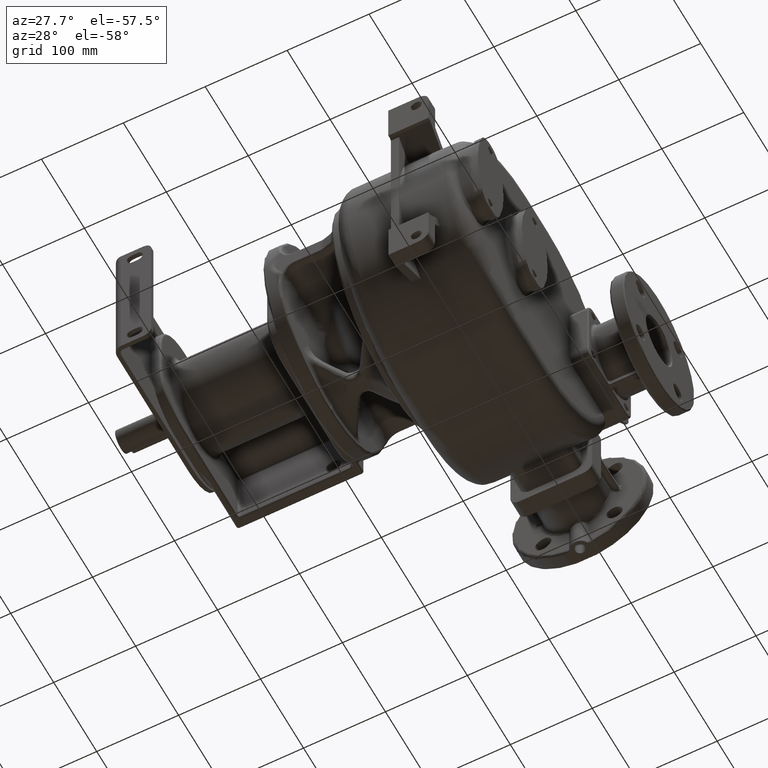
[diagram: clean part render]
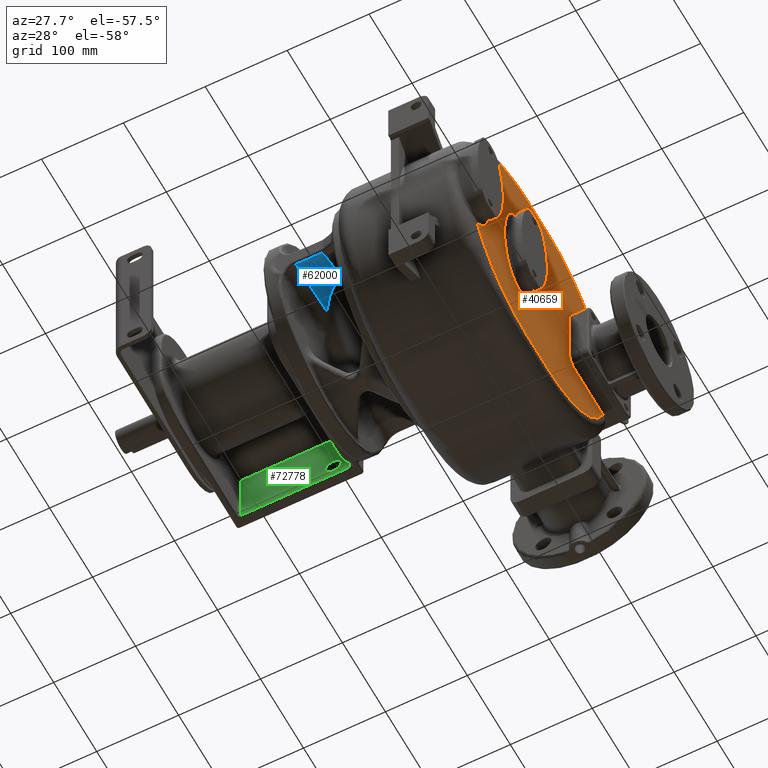
[diagram: same view with three faces highlighted in distinct colors, each labeled with its STEP entity id]
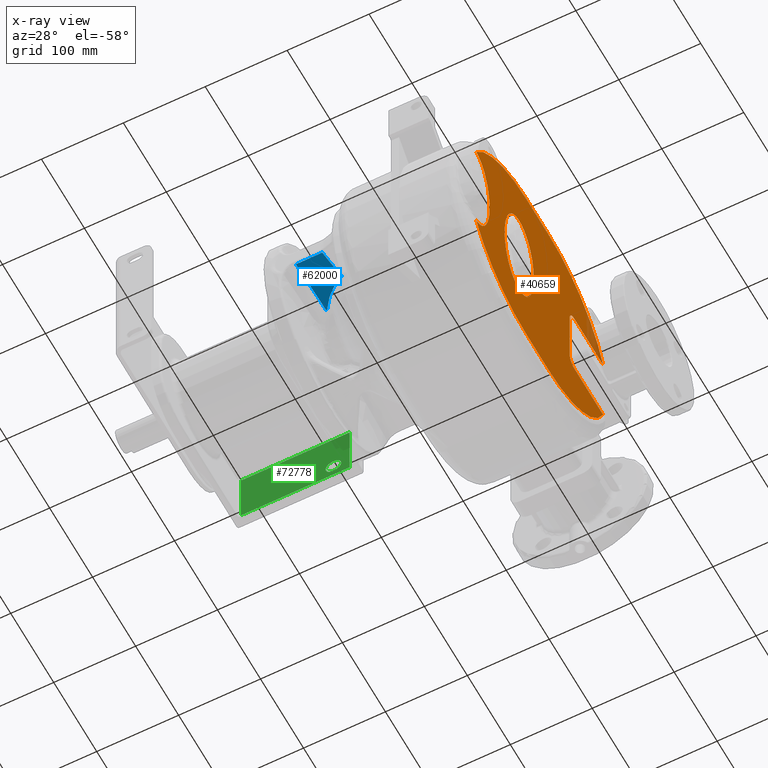
[diagram: x-ray of the same camera — body ghosted, the three highlighted faces saturated]
A machine part, auxiliary view with three faces highlighted in distinct colors.
The next image is the same camera in x-ray (body ghosted, the three faces saturated) — at least one of them is partly hidden behind the body in this view.
Their STEP definitions:

[orange] entity #40659 — the highlighted planar face has unit normal (-1, 0, 0).
#1477=DIRECTION('',(0.E0,1.E0,0.E0));
#1478=VECTOR('',#1477,6.565424301820E1);
#1479=CARTESIAN_POINT('',(5.1E1,2.72E2,-5.95E1));
#1480=LINE('',#1479,#1478);
#1494=CARTESIAN_POINT('',(5.1E1,2.72E2,-4.75E1));
#1495=DIRECTION('',(1.E0,0.E0,0.E0));
#1496=DIRECTION('',(0.E0,-1.E0,1.184237892934E-14));
#1497=AXIS2_PLACEMENT_3D('',#1494,#1495,#1496);
#1503=DIRECTION('',(0.E0,0.E0,-1.E0));
#1504=VECTOR('',#1503,7.6E1);
#1505=CARTESIAN_POINT('',(5.1E1,2.6E2,2.85E1));
#1506=LINE('',#1505,#1504);
#1520=CARTESIAN_POINT('',(5.1E1,2.72E2,2.85E1));
#1521=DIRECTION('',(1.E0,0.E0,0.E0));
#1522=DIRECTION('',(0.E0,0.E0,1.E0));
#1523=AXIS2_PLACEMENT_3D('',#1520,#1521,#1522);
#1555=DIRECTION('',(0.E0,-1.E0,0.E0));
#1556=VECTOR('',#1555,6.565424301820E1);
#1557=CARTESIAN_POINT('',(5.1E1,3.376542430182E2,4.05E1));
#1558=LINE('',#1557,#1556);
#4350=CARTESIAN_POINT('',(5.1E1,4.268468230438E1,-7.829761792100E1));
#4351=CARTESIAN_POINT('',(5.099996561771E1,4.288507179949E1,-7.826740599612E1));
#4352=CARTESIAN_POINT('',(5.100001595688E1,4.328742902132E1,-7.819890789432E1));
#4353=CARTESIAN_POINT('',(5.099999572437E1,4.389653179652E1,-7.807625427332E1));
#4354=CARTESIAN_POINT('',(5.100000114565E1,4.451015052127E1,-7.793029252458E1));
#4355=CARTESIAN_POINT('',(5.099999969302E1,4.512800273074E1,-7.776109483297E1));
#4356=CARTESIAN_POINT('',(5.100000008225E1,4.574971127507E1,-7.756808605748E1));
#4357=CARTESIAN_POINT('',(5.099999997796E1,4.637485257182E1,-7.735086832641E1));
#4358=CARTESIAN_POINT('',(5.100000000591E1,4.700289698337E1,-7.710900963770E1));
#4359=CARTESIAN_POINT('',(5.099999999842E1,4.763334699683E1,-7.684206742626E1));
#4360=CARTESIAN_POINT('',(5.100000000042E1,4.826676153901E1,-7.654904976802E1));
#4361=CARTESIAN_POINT('',(5.099999999989E1,4.890341585481E1,-7.622885375864E1));
#4362=CARTESIAN_POINT('',(5.100000000003E1,4.954380623338E1,-7.588032860335E1));
#4363=CARTESIAN_POINT('',(5.099999999999E1,5.018874412959E1,-7.550200832904E1));
#4364=CARTESIAN_POINT('',(5.1E1,5.083884821383E1,-7.509232479841E1));
#4365=CARTESIAN_POINT('',(5.1E1,5.149439665396E1,-7.464973808498E1));
#4366=CARTESIAN_POINT('',(5.1E1,5.215506656970E1,-7.417300120280E1));
#4367=CARTESIAN_POINT('',(5.1E1,5.282057344521E1,-7.366073118933E1));
#4368=CARTESIAN_POINT('',(5.1E1,5.349118766629E1,-7.311100072795E1));
#4369=CARTESIAN_POINT('',(5.1E1,5.416695237795E1,-7.252194633949E1));
#4370=CARTESIAN_POINT('',(5.1E1,5.484820059100E1,-7.189138038999E1));
#4371=CARTESIAN_POINT('',(5.1E1,5.553511743964E1,-7.121689049875E1));
#4372=CARTESIAN_POINT('',(5.1E1,5.622762763603E1,-7.049599298151E1));
#4373=CARTESIAN_POINT('',(5.1E1,5.692565037110E1,-6.972620942903E1));
#4374=CARTESIAN_POINT('',(5.1E1,5.762911597369E1,-6.890478823583E1));
#4375=CARTESIAN_POINT('',(5.1E1,5.833760198895E1,-6.802886547776E1));
#4376=CARTESIAN_POINT('',(5.1E1,5.905078452352E1,-6.709557468899E1));
#4377=CARTESIAN_POINT('',(5.1E1,5.976826484898E1,-6.610173600559E1));
#4378=CARTESIAN_POINT('',(5.1E1,6.048927555365E1,-6.504413150019E1));
#4379=CARTESIAN_POINT('',(5.1E1,6.121316906244E1,-6.391960173982E1));
#4380=CARTESIAN_POINT('',(5.1E1,6.193889707117E1,-6.272473133623E1));
#4381=CARTESIAN_POINT('',(5.1E1,6.266534555412E1,-6.145632961044E1));
#4382=CARTESIAN_POINT('',(5.1E1,6.339114370431E1,-6.011112285671E1));
#4383=CARTESIAN_POINT('',(5.1E1,6.411470481896E1,-5.868601935351E1));
#4384=CARTESIAN_POINT('',(5.1E1,6.483421764752E1,-5.717807369418E1));
#4385=CARTESIAN_POINT('',(5.1E1,6.554764252815E1,-5.558459897810E1));
#4386=CARTESIAN_POINT('',(5.1E1,6.625267766251E1,-5.390315458386E1));
#4387=CARTESIAN_POINT('',(5.1E1,6.694684456093E1,-5.213178475273E1));
#4388=CARTESIAN_POINT('',(5.1E1,6.762737744976E1,-5.026876582079E1));
#4389=CARTESIAN_POINT('',(5.1E1,6.829138029397E1,-4.831318841168E1));
#4390=CARTESIAN_POINT('',(5.1E1,6.893568225212E1,-4.626437093269E1));
#4391=CARTESIAN_POINT('',(5.1E1,6.955703533691E1,-4.412272100989E1));
#4392=CARTESIAN_POINT('',(5.1E1,7.015197659104E1,-4.188891570806E1));
#4393=CARTESIAN_POINT('',(5.1E1,7.071701258749E1,-3.956499331776E1));
#4394=CARTESIAN_POINT('',(5.1E1,7.124852323063E1,-3.715333472581E1));
#4395=CARTESIAN_POINT('',(5.1E1,7.174295120871E1,-3.465789644974E1));
#4396=CARTESIAN_POINT('',(5.1E1,7.219671521296E1,-3.208297416800E1));
#4397=CARTESIAN_POINT('',(5.1E1,7.260644838124E1,-2.943460258677E1));
#4398=CARTESIAN_POINT('',(5.1E1,7.296884938983E1,-2.671900695181E1));
#4399=CARTESIAN_POINT('',(5.1E1,7.328103407963E1,-2.394428808925E1));
#4400=CARTESIAN_POINT('',(5.1E1,7.354023556065E1,-2.111846639106E1));
#4401=CARTESIAN_POINT('',(5.1E1,7.374434634312E1,-1.825124108219E1));
#4402=CARTESIAN_POINT('',(5.1E1,7.389140494774E1,-1.535219718479E1));
#4403=CARTESIAN_POINT('',(5.1E1,7.398020840343E1,-1.243180397531E1));
#4404=CARTESIAN_POINT('',(5.1E1,7.400992863331E1,-9.500762035922E0));
#4405=CARTESIAN_POINT('',(5.1E1,7.398021035708E1,-6.569793554659E0));
#4406=CARTESIAN_POINT('',(5.1E1,7.389151997745E1,-3.649689023067E0));
#4407=CARTESIAN_POINT('',(5.1E1,7.374446222223E1,-7.512879259407E-1));
#4408=CARTESIAN_POINT('',(5.1E1,7.354050936742E1,2.115372944137E0));
#4409=CARTESIAN_POINT('',(5.1E1,7.328143634435E1,4.940248282945E0));
#4410=CARTESIAN_POINT('',(5.1E1,7.296944496160E1,7.714094990068E0));
#4411=CARTESIAN_POINT('',(5.1E1,7.260728526747E1,1.042883596926E1));
#4412=CARTESIAN_POINT('',(5.1E1,7.219779102521E1,1.307638460795E1));
#4413=CARTESIAN_POINT('',(5.1E1,7.174428822225E1,1.565077391175E1));
#4414=CARTESIAN_POINT('',(5.1E1,7.125008952268E1,1.814582140276E1));
#4415=CARTESIAN_POINT('',(5.1E1,7.071878075665E1,2.055735893335E1));
#4416=CARTESIAN_POINT('',(5.1E1,7.015391282136E1,2.288131600846E1));
#4417=CARTESIAN_POINT('',(5.1E1,6.955910016100E1,2.511528923680E1));
#4418=CARTESIAN_POINT('',(5.1E1,6.893785485243E1,2.725718990492E1));
#4419=CARTESIAN_POINT('',(5.1E1,6.829363527154E1,2.930628697859E1));
#4420=CARTESIAN_POINT('',(5.1E1,6.762970895359E1,3.126214921497E1));
#4421=CARTESIAN_POINT('',(5.1E1,6.694924118206E1,3.312545633423E1));
#4422=CARTESIAN_POINT('',(5.1E1,6.625512790030E1,3.489710363505E1));
#4423=CARTESIAN_POINT('',(5.1E1,6.555014008915E1,3.657884672933E1));
#4424=CARTESIAN_POINT('',(5.1E1,6.483673896275E1,3.817260733681E1));
#4425=CARTESIAN_POINT('',(5.1E1,6.411724588901E1,3.968087256941E1));
#4426=CARTESIAN_POINT('',(5.1E1,6.339367317349E1,4.110627625656E1));
#4427=CARTESIAN_POINT('',(5.1E1,6.266786463320E1,4.245181546342E1));
#4428=CARTESIAN_POINT('',(5.1E1,6.194137155041E1,4.372052191547E1));
#4429=CARTESIAN_POINT('',(5.1E1,6.121561074060E1,4.491570864696E1));
#4430=CARTESIAN_POINT('',(5.1E1,6.049166052959E1,4.604052928592E1));
#4431=CARTESIAN_POINT('',(5.1E1,5.977059833355E1,4.709840387831E1));
#4432=CARTESIAN_POINT('',(5.1E1,5.905306843223E1,4.809251771553E1));
#4433=CARTESIAN_POINT('',(5.1E1,5.833981403696E1,4.902603726072E1));
#4434=CARTESIAN_POINT('',(5.1E1,5.763129418459E1,4.990217294349E1));
#4435=CARTESIAN_POINT('',(5.1E1,5.692777948318E1,5.072380732267E1));
#4436=CARTESIAN_POINT('',(5.1E1,5.622968695062E1,5.149377503879E1));
#4437=CARTESIAN_POINT('',(5.1E1,5.553710960923E1,5.221487826260E1));
#4438=CARTESIAN_POINT('',(5.1E1,5.485008438574E1,5.288959811338E1));
#4439=CARTESIAN_POINT('',(5.1E1,5.416873249231E1,5.352033814771E1));
#4440=CARTESIAN_POINT('',(5.1E1,5.349292770487E1,5.410951724765E1));
#4441=CARTESIAN_POINT('',(5.1E1,5.282234393438E1,5.465932089543E1));
#4442=CARTESIAN_POINT('',(5.1E1,5.215689483611E1,5.517164514390E1));
#4443=CARTESIAN_POINT('',(5.1E1,5.149626269215E1,5.564843901822E1));
#4444=CARTESIAN_POINT('',(5.1E1,5.084066802205E1,5.609113498735E1));
#4445=CARTESIAN_POINT('',(5.099999999999E1,5.019050885427E1,5.650092956910E1));
#4446=CARTESIAN_POINT('',(5.100000000003E1,4.954558002087E1,5.687932374159E1));
#4447=CARTESIAN_POINT('',(5.099999999988E1,4.890525530406E1,5.722789592884E1));
#4448=CARTESIAN_POINT('',(5.100000000044E1,4.826872704455E1,5.754812214396E1));
#4449=CARTESIAN_POINT('',(5.099999999836E1,4.763539962473E1,5.784117482806E1));
#4450=CARTESIAN_POINT('',(5.100000000611E1,4.700496128333E1,5.810816505988E1));
#4451=CARTESIAN_POINT('',(5.099999997719E1,4.637679908441E1,5.835011981441E1));
#4452=CARTESIAN_POINT('',(5.100000008514E1,4.575138389332E1,5.856748598768E1));
#4453=CARTESIAN_POINT('',(5.099999968224E1,4.512931824123E1,5.876066600221E1));
#4454=CARTESIAN_POINT('',(5.100000118588E1,4.451107245717E1,5.893004500376E1));
#4455=CARTESIAN_POINT('',(5.099999557422E1,4.389708749132E1,5.907617708156E1));
#4456=CARTESIAN_POINT('',(5.100001651725E1,4.328765997884E1,5.919899423685E1));
#4457=CARTESIAN_POINT('',(5.099996441028E1,4.288513209263E1,5.926739849668E1));
#4458=CARTESIAN_POINT('',(5.1E1,4.268468074864E1,5.929761836222E1));
#4460=CARTESIAN_POINT('',(5.1E1,1.6E2,-9.5E0));
#4461=DIRECTION('',(1.E0,0.E0,0.E0));
#4462=DIRECTION('',(0.E0,0.E0,1.E0));
#4463=AXIS2_PLACEMENT_3D('',#4460,#4461,#4462);
#4465=DIRECTION('',(0.E0,-1.E0,0.E0));
#4466=VECTOR('',#4465,5.117894898810E1);
#4467=CARTESIAN_POINT('',(5.1E1,2.111789489881E2,1.265E2));
#4468=LINE('',#4467,#4466);
#4469=CARTESIAN_POINT('',(5.1E1,2.111789489881E2,-9.5E0));
#4470=DIRECTION('',(1.E0,0.E0,0.E0));
#4471=DIRECTION('',(0.E0,9.299653972801E-1,3.676470588235E-1));
#4472=AXIS2_PLACEMENT_3D('',#4469,#4470,#4471);
#4474=CARTESIAN_POINT('',(5.1E1,2.111789489881E2,-9.5E0));
#4475=DIRECTION('',(1.E0,0.E0,0.E0));
#4476=DIRECTION('',(0.E0,0.E0,-1.E0));
#4477=AXIS2_PLACEMENT_3D('',#4474,#4475,#4476);
#4479=DIRECTION('',(0.E0,1.E0,0.E0));
#4480=VECTOR('',#4479,5.117894898810E1);
#4481=CARTESIAN_POINT('',(5.1E1,1.6E2,-1.455E2));
#4482=LINE('',#4481,#4480);
#4483=CARTESIAN_POINT('',(5.1E1,1.6E2,-9.5E0));
#4484=DIRECTION('',(1.E0,0.E0,0.E0));
#4485=DIRECTION('',(0.E0,-8.626127234458E-1,-5.058648923868E-1));
#4486=AXIS2_PLACEMENT_3D('',#4483,#4484,#4485);
#4488=CARTESIAN_POINT('',(5.100003607404E1,1.425000000248E2,5.949999999900E1));
#4489=CARTESIAN_POINT('',(5.100007695994E1,1.422945999860E2,5.949991869386E1));
#4490=CARTESIAN_POINT('',(5.099996428277E1,1.418837711637E2,5.949238214688E1));
#4491=CARTESIAN_POINT('',(5.100000957040E1,1.412675380692E2,5.946022529515E1));
#4492=CARTESIAN_POINT('',(5.099999743562E1,1.406510244680E2,5.940679982663E1));
#4493=CARTESIAN_POINT('',(5.100000068712E1,1.400340643095E2,5.933215876645E1));
#4494=CARTESIAN_POINT('',(5.099999981589E1,1.394165017566E2,5.923603954965E1));
#4495=CARTESIAN_POINT('',(5.100000004933E1,1.387982238144E2,5.911809729550E1));
#4496=CARTESIAN_POINT('',(5.099999998678E1,1.381792348535E2,5.897775819680E1));
#4497=CARTESIAN_POINT('',(5.100000000354E1,1.375593205335E2,5.881472030319E1));
#4498=CARTESIAN_POINT('',(5.099999999905E1,1.369372400594E2,5.862845164102E1));
#4499=CARTESIAN_POINT('',(5.100000000025E1,1.363119820411E2,5.841818751397E1));
#4500=CARTESIAN_POINT('',(5.099999999993E1,1.356824819503E2,5.818290845154E1));
#4501=CARTESIAN_POINT('',(5.100000000002E1,1.350489230754E2,5.792185380042E1));
#4502=CARTESIAN_POINT('',(5.1E1,1.344119946498E2,5.763441051009E1));
#4503=CARTESIAN_POINT('',(5.1E1,1.337726444242E2,5.732006076733E1));
#4504=CARTESIAN_POINT('',(5.1E1,1.331303549075E2,5.697779423724E1));
#4505=CARTESIAN_POINT('',(5.1E1,1.324835900825E2,5.660583851482E1));
#4506=CARTESIAN_POINT('',(5.1E1,1.318311859473E2,5.620229668672E1));
#4507=CARTESIAN_POINT('',(5.1E1,1.311732286872E2,5.576581988051E1));
#4508=CARTESIAN_POINT('',(5.1E1,1.305103404312E2,5.529536680020E1));
#4509=CARTESIAN_POINT('',(5.1E1,1.298427382671E2,5.478953744139E1));
#4510=CARTESIAN_POINT('',(5.1E1,1.291697147922E2,5.424608590368E1));
#4511=CARTESIAN_POINT('',(5.1E1,1.284909359667E2,5.366285240601E1));
#4512=CARTESIAN_POINT('',(5.1E1,1.278062722040E2,5.303775360821E1));
#4513=CARTESIAN_POINT('',(5.1E1,1.271157186552E2,5.236850826974E1));
#4514=CARTESIAN_POINT('',(5.1E1,1.264191972144E2,5.165244395457E1));
#4515=CARTESIAN_POINT('',(5.1E1,1.257168525221E2,5.088708357241E1));
#4516=CARTESIAN_POINT('',(5.1E1,1.250089568863E2,5.006986852159E1));
#4517=CARTESIAN_POINT('',(5.1E1,1.242957142527E2,4.919764314533E1));
#4518=CARTESIAN_POINT('',(5.1E1,1.235775224291E2,4.826756429417E1));
#4519=CARTESIAN_POINT('',(5.1E1,1.228549234872E2,4.727659576194E1));
#4520=CARTESIAN_POINT('',(5.1E1,1.221285474659E2,4.622128304718E1));
#4521=CARTESIAN_POINT('',(5.1E1,1.213991371343E2,4.509854369749E1));
#4522=CARTESIAN_POINT('',(5.1E1,1.206677674329E2,4.390494095506E1));
#4523=CARTESIAN_POINT('',(5.1E1,1.199355733907E2,4.263727427826E1));
#4524=CARTESIAN_POINT('',(5.1E1,1.192039697873E2,4.129227625580E1));
#4525=CARTESIAN_POINT('',(5.1E1,1.184744894627E2,3.986670584021E1));
#4526=CARTESIAN_POINT('',(5.1E1,1.177489680175E2,3.835755962095E1));
#4527=CARTESIAN_POINT('',(5.1E1,1.170294180954E2,3.676200982608E1));
#4528=CARTESIAN_POINT('',(5.1E1,1.163181822120E2,3.507756380943E1));
#4529=CARTESIAN_POINT('',(5.1E1,1.156176932954E2,3.330202105268E1));
#4530=CARTESIAN_POINT('',(5.1E1,1.149308227632E2,3.143374570208E1));
#4531=CARTESIAN_POINT('',(5.1E1,1.142604405156E2,2.947155447930E1));
#4532=CARTESIAN_POINT('',(5.1E1,1.136098340179E2,2.741493039363E1));
#4533=CARTESIAN_POINT('',(5.1E1,1.129822596106E2,2.526400604078E1));
#4534=CARTESIAN_POINT('',(5.1E1,1.123812903285E2,2.301969527692E1));
#4535=CARTESIAN_POINT('',(5.1E1,1.118104728852E2,2.068382489743E1));
#4536=CARTESIAN_POINT('',(5.1E1,1.112735120291E2,1.825905168608E1));
#4537=CARTESIAN_POINT('',(5.1E1,1.107740447979E2,1.574916272576E1));
#4538=CARTESIAN_POINT('',(5.1E1,1.103157078540E2,1.315875961342E1));
#4539=CARTESIAN_POINT('',(5.1E1,1.099019530578E2,1.049367489146E1));
#4540=CARTESIAN_POINT('',(5.1E1,1.095361277721E2,7.760579166331E0));
#4541=CARTESIAN_POINT('',(5.1E1,1.092211808004E2,4.967212561138E0));
#4542=CARTESIAN_POINT('',(5.1E1,1.089599364244E2,2.122267163949E0));
#4543=CARTESIAN_POINT('',(5.1E1,1.087545231923E2,-7.650070357867E-1));
#4544=CARTESIAN_POINT('',(5.1E1,1.086069979656E2,-3.684276714327E0));
#4545=CARTESIAN_POINT('',(5.1E1,1.085184897661E2,-6.625214621036E0));
#4546=CARTESIAN_POINT('',(5.1E1,1.084899735288E2,-9.576753695830E0));
#4547=CARTESIAN_POINT('',(5.1E1,1.085216498444E2,-1.252782067768E1));
#4548=CARTESIAN_POINT('',(5.1E1,1.086131402192E2,-1.546745092398E1));
#4549=CARTESIAN_POINT('',(5.1E1,1.087637734004E2,-1.838472553924E1));
#4550=CARTESIAN_POINT('',(5.1E1,1.089719293173E2,-2.126897740858E1));
#4551=CARTESIAN_POINT('',(5.1E1,1.092359446727E2,-2.411052577182E1));
#4552=CARTESIAN_POINT('',(5.1E1,1.095533383882E2,-2.689956379346E1));
#4553=CARTESIAN_POINT('',(5.1E1,1.099214405269E2,-2.962799373773E1));
#4554=CARTESIAN_POINT('',(5.1E1,1.103372520632E2,-3.228790944859E1));
#4555=CARTESIAN_POINT('',(5.1E1,1.107973389368E2,-3.487277405746E1));
#4556=CARTESIAN_POINT('',(5.1E1,1.112983890852E2,-3.737694671690E1));
#4557=CARTESIAN_POINT('',(5.1E1,1.118365868703E2,-3.979569594856E1));
#4558=CARTESIAN_POINT('',(5.1E1,1.124084673064E2,-4.212549920756E1));
#4559=CARTESIAN_POINT('',(5.1E1,1.130101804922E2,-4.436358945667E1));
#4560=CARTESIAN_POINT('',(5.1E1,1.136382952599E2,-4.650830174892E1));
#4561=CARTESIAN_POINT('',(5.1E1,1.142891844516E2,-4.855873036060E1));
#4562=CARTESIAN_POINT('',(5.1E1,1.149596114773E2,-5.051476255298E1));
#4563=CARTESIAN_POINT('',(5.1E1,1.156463483562E2,-5.237704205210E1));
#4564=CARTESIAN_POINT('',(5.1E1,1.163464630557E2,-5.414670701812E1));
#4565=CARTESIAN_POINT('',(5.1E1,1.170572255337E2,-5.582555299853E1));
#4566=CARTESIAN_POINT('',(5.1E1,1.177760896220E2,-5.741569755446E1));
#4567=CARTESIAN_POINT('',(5.1E1,1.185008388262E2,-5.891968185008E1));
#4568=CARTESIAN_POINT('',(5.1E1,1.192293541828E2,-6.034030852213E1));
#4569=CARTESIAN_POINT('',(5.1E1,1.199599221719E2,-6.168058467168E1));
#4570=CARTESIAN_POINT('',(5.1E1,1.206908800770E2,-6.294373717395E1));
#4571=CARTESIAN_POINT('',(5.1E1,1.214209179693E2,-6.413294659644E1));
#4572=CARTESIAN_POINT('',(5.1E1,1.221488401736E2,-6.525158924637E1));
#4573=CARTESIAN_POINT('',(5.1E1,1.228736502344E2,-6.630296156376E1));
#4574=CARTESIAN_POINT('',(5.1E1,1.235946882183E2,-6.729035966057E1));
#4575=CARTESIAN_POINT('',(5.1E1,1.243112355300E2,-6.821715616336E1));
#4576=CARTESIAN_POINT('',(5.1E1,1.250228771469E2,-6.908634661733E1));
#4577=CARTESIAN_POINT('',(5.1E1,1.257294164673E2,-6.990113093142E1));
#4578=CARTESIAN_POINT('',(5.1E1,1.264304753154E2,-7.066436828689E1));
#4579=CARTESIAN_POINT('',(5.1E1,1.271259289295E2,-7.137865157255E1));
#4580=CARTESIAN_POINT('',(5.1E1,1.278158082142E2,-7.204670326105E1));
#4581=CARTESIAN_POINT('',(5.1E1,1.284999694859E2,-7.267085881927E1));
#4582=CARTESIAN_POINT('',(5.1E1,1.291785243110E2,-7.325336343749E1));
#4583=CARTESIAN_POINT('',(5.1E1,1.298516193506E2,-7.379641585594E1));
#4584=CARTESIAN_POINT('',(5.1E1,1.305192655782E2,-7.430188838955E1));
#4585=CARTESIAN_POINT('',(5.1E1,1.311817226926E2,-7.477165876465E1));
#4586=CARTESIAN_POINT('',(5.1E1,1.318391675191E2,-7.520741828588E1));
#4587=CARTESIAN_POINT('',(5.1E1,1.324917707286E2,-7.561070947403E1));
#4588=CARTESIAN_POINT('',(5.1E1,1.331398704629E2,-7.598301723050E1));
#4589=CARTESIAN_POINT('',(5.1E1,1.337836236252E2,-7.632560894213E1));
#4590=CARTESIAN_POINT('',(5.1E1,1.344233019318E2,-7.663971750110E1));
#4591=CARTESIAN_POINT('',(5.100000000001E1,1.350592519593E2,-7.692644427837E1));
#4592=CARTESIAN_POINT('',(5.099999999997E1,1.356918320403E2,-7.718685013442E1));
#4593=CARTESIAN_POINT('',(5.100000000013E1,1.363214326640E2,-7.742182682782E1));
#4594=CARTESIAN_POINT('',(5.099999999953E1,1.369480966556E2,-7.763206647714E1));
#4595=CARTESIAN_POINT('',(5.100000000175E1,1.375718720997E2,-7.781827214628E1));
#4596=CARTESIAN_POINT('',(5.099999999347E1,1.381932475108E2,-7.798108622766E1));
#4597=CARTESIAN_POINT('',(5.100000002436E1,1.388128885599E2,-7.812117091758E1));
#4598=CARTESIAN_POINT('',(5.099999990907E1,1.394316154250E2,-7.823909313028E1));
#4599=CARTESIAN_POINT('',(5.100000033935E1,1.400492866518E2,-7.833500624514E1));
#4600=CARTESIAN_POINT('',(5.099999873353E1,1.406654032315E2,-7.840914090886E1));
#4601=CARTESIAN_POINT('',(5.100000472654E1,1.412795575183E2,-7.846177944300E1));
#4602=CARTESIAN_POINT('',(5.099998236029E1,1.418914219473E2,-7.849308176597E1));
#4603=CARTESIAN_POINT('',(5.100003800828E1,1.422974360378E2,-7.849999666151E1));
#4604=CARTESIAN_POINT('',(5.100003607404E1,1.424999999752E2,-7.849999999900E1));
#4606=CARTESIAN_POINT('',(5.100003607404E1,1.424999999752E2,-7.849999999900E1));
#4607=CARTESIAN_POINT('',(5.100007695994E1,1.427054000140E2,-7.849991869386E1));
#4608=CARTESIAN_POINT('',(5.099996428277E1,1.431162288363E2,-7.849238214688E1));
#4609=CARTESIAN_POINT('',(5.100000957040E1,1.437324619308E2,-7.846022529515E1));
#4610=CARTESIAN_POINT('',(5.099999743562E1,1.443489755320E2,-7.840679982663E1));
#4611=CARTESIAN_POINT('',(5.100000068712E1,1.449659356905E2,-7.833215876645E1));
#4612=CARTESIAN_POINT('',(5.099999981589E1,1.455834982434E2,-7.823603954965E1));
#4613=CARTESIAN_POINT('',(5.100000004933E1,1.462017761856E2,-7.811809729550E1));
#4614=CARTESIAN_POINT('',(5.099999998678E1,1.468207651465E2,-7.797775819680E1));
#4615=CARTESIAN_POINT('',(5.100000000354E1,1.474406794665E2,-7.781472030319E1));
#4616=CARTESIAN_POINT('',(5.099999999905E1,1.480627599406E2,-7.762845164102E1));
#4617=CARTESIAN_POINT('',(5.100000000025E1,1.486880179589E2,-7.741818751397E1));
#4618=CARTESIAN_POINT('',(5.099999999993E1,1.493175180497E2,-7.718290845154E1));
#4619=CARTESIAN_POINT('',(5.100000000002E1,1.499510769246E2,-7.692185380042E1));
#4620=CARTESIAN_POINT('',(5.1E1,1.505880053502E2,-7.663441051009E1));
#4621=CARTESIAN_POINT('',(5.1E1,1.512273555758E2,-7.632006076733E1));
#4622=CARTESIAN_POINT('',(5.1E1,1.518696450925E2,-7.597779423724E1));
#4623=CARTESIAN_POINT('',(5.1E1,1.525164099175E2,-7.560583851482E1));
#4624=CARTESIAN_POINT('',(5.1E1,1.531688140527E2,-7.520229668672E1));
#4625=CARTESIAN_POINT('',(5.1E1,1.538267713128E2,-7.476581988051E1));
#4626=CARTESIAN_POINT('',(5.1E1,1.544896595688E2,-7.429536680020E1));
#4627=CARTESIAN_POINT('',(5.1E1,1.551572617329E2,-7.378953744139E1));
#4628=CARTESIAN_POINT('',(5.1E1,1.558302852078E2,-7.324608590368E1));
#4629=CARTESIAN_POINT('',(5.1E1,1.565090640333E2,-7.266285240601E1));
#4630=CARTESIAN_POINT('',(5.1E1,1.571937277960E2,-7.203775360821E1));
#4631=CARTESIAN_POINT('',(5.1E1,1.578842813448E2,-7.136850826974E1));
#4632=CARTESIAN_POINT('',(5.1E1,1.585808027856E2,-7.065244395456E1));
#4633=CARTESIAN_POINT('',(5.1E1,1.592831474779E2,-6.988708357241E1));
#4634=CARTESIAN_POINT('',(5.1E1,1.599910431137E2,-6.906986852159E1));
#4635=CARTESIAN_POINT('',(5.1E1,1.607042857473E2,-6.819764314533E1));
#4636=CARTESIAN_POINT('',(5.1E1,1.614224775709E2,-6.726756429417E1));
#4637=CARTESIAN_POINT('',(5.1E1,1.621450765128E2,-6.627659576194E1));
#4638=CARTESIAN_POINT('',(5.1E1,1.628714525341E2,-6.522128304718E1));
#4639=CARTESIAN_POINT('',(5.1E1,1.636008628657E2,-6.409854369749E1));
#4640=CARTESIAN_POINT('',(5.1E1,1.643322325671E2,-6.290494095505E1));
#4641=CARTESIAN_POINT('',(5.1E1,1.650644266093E2,-6.163727427826E1));
#4642=CARTESIAN_POINT('',(5.1E1,1.657960302127E2,-6.029227625580E1));
#4643=CARTESIAN_POINT('',(5.1E1,1.665255105373E2,-5.886670584021E1));
#4644=CARTESIAN_POINT('',(5.1E1,1.672510319825E2,-5.735755962095E1));
#4645=CARTESIAN_POINT('',(5.1E1,1.679705819046E2,-5.576200982608E1));
#4646=CARTESIAN_POINT('',(5.1E1,1.686818177880E2,-5.407756380942E1));
#4647=CARTESIAN_POINT('',(5.1E1,1.693823067046E2,-5.230202105268E1));
#4648=CARTESIAN_POINT('',(5.1E1,1.700691772368E2,-5.043374570208E1));
#4649=CARTESIAN_POINT('',(5.1E1,1.707395594844E2,-4.847155447930E1));
#4650=CARTESIAN_POINT('',(5.1E1,1.713901659821E2,-4.641493039363E1));
#4651=CARTESIAN_POINT('',(5.1E1,1.720177403894E2,-4.426400604078E1));
#4652=CARTESIAN_POINT('',(5.1E1,1.726187096715E2,-4.201969527692E1));
#4653=CARTESIAN_POINT('',(5.1E1,1.731895271148E2,-3.968382489743E1));
#4654=CARTESIAN_POINT('',(5.1E1,1.737264879709E2,-3.725905168608E1));
#4655=CARTESIAN_POINT('',(5.1E1,1.742259552021E2,-3.474916272576E1));
#4656=CARTESIAN_POINT('',(5.1E1,1.746842921460E2,-3.215875961342E1));
#4657=CARTESIAN_POINT('',(5.1E1,1.750980469422E2,-2.949367489146E1));
#4658=CARTESIAN_POINT('',(5.1E1,1.754638722279E2,-2.676057916633E1));
#4659=CARTESIAN_POINT('',(5.1E1,1.757788191996E2,-2.396721256114E1));
#4660=CARTESIAN_POINT('',(5.1E1,1.760400635756E2,-2.112226716395E1));
#4661=CARTESIAN_POINT('',(5.1E1,1.762454768077E2,-1.823499296421E1));
#4662=CARTESIAN_POINT('',(5.1E1,1.763930020344E2,-1.531572328567E1));
#4663=CARTESIAN_POINT('',(5.1E1,1.764815102339E2,-1.237478537896E1));
#4664=CARTESIAN_POINT('',(5.1E1,1.765100264712E2,-9.423246304170E0));
#4665=CARTESIAN_POINT('',(5.1E1,1.764783501556E2,-6.472179322323E0));
#4666=CARTESIAN_POINT('',(5.1E1,1.763868597808E2,-3.532549076025E0));
#4667=CARTESIAN_POINT('',(5.1E1,1.762362265996E2,-6.152744607656E-1));
#4668=CARTESIAN_POINT('',(5.1E1,1.760280706827E2,2.268977408573E0));
#4669=CARTESIAN_POINT('',(5.1E1,1.757640553273E2,5.110525771814E0));
#4670=CARTESIAN_POINT('',(5.1E1,1.754466616118E2,7.899563793457E0));
#4671=CARTESIAN_POINT('',(5.1E1,1.750785594731E2,1.062799373773E1));
#4672=CARTESIAN_POINT('',(5.1E1,1.746627479368E2,1.328790944859E1));
#4673=CARTESIAN_POINT('',(5.1E1,1.742026610632E2,1.587277405746E1));
#4674=CARTESIAN_POINT('',(5.1E1,1.737016109148E2,1.837694671690E1));
#4675=CARTESIAN_POINT('',(5.1E1,1.731634131297E2,2.079569594856E1));
#4676=CARTESIAN_POINT('',(5.1E1,1.725915326936E2,2.312549920755E1));
#4677=CARTESIAN_POINT('',(5.1E1,1.719898195078E2,2.536358945667E1));
#4678=CARTESIAN_POINT('',(5.1E1,1.713617047401E2,2.750830174891E1));
#4679=CARTESIAN_POINT('',(5.1E1,1.707108155484E2,2.955873036060E1));
#4680=CARTESIAN_POINT('',(5.1E1,1.700403885227E2,3.151476255297E1));
#4681=CARTESIAN_POINT('',(5.1E1,1.693536516438E2,3.337704205210E1));
#4682=CARTESIAN_POINT('',(5.1E1,1.686535369443E2,3.514670701812E1));
#4683=CARTESIAN_POINT('',(5.1E1,1.679427744663E2,3.682555299853E1));
#4684=CARTESIAN_POINT('',(5.1E1,1.672239103780E2,3.841569755446E1));
#4685=CARTESIAN_POINT('',(5.1E1,1.664991611738E2,3.991968185008E1));
#4686=CARTESIAN_POINT('',(5.1E1,1.657706458172E2,4.134030852213E1));
#4687=CARTESIAN_POINT('',(5.1E1,1.650400778281E2,4.268058467168E1));
#4688=CARTESIAN_POINT('',(5.1E1,1.643091199230E2,4.394373717395E1));
#4689=CARTESIAN_POINT('',(5.1E1,1.635790820307E2,4.513294659643E1));
#4690=CARTESIAN_POINT('',(5.1E1,1.628511598264E2,4.625158924637E1));
#4691=CARTESIAN_POINT('',(5.1E1,1.621263497656E2,4.730296156376E1));
#4692=CARTESIAN_POINT('',(5.1E1,1.614053117817E2,4.829035966057E1));
#4693=CARTESIAN_POINT('',(5.1E1,1.606887644700E2,4.921715616336E1));
#4694=CARTESIAN_POINT('',(5.1E1,1.599771228531E2,5.008634661733E1));
#4695=CARTESIAN_POINT('',(5.1E1,1.592705835327E2,5.090113093142E1));
#4696=CARTESIAN_POINT('',(5.1E1,1.585695246846E2,5.166436828689E1));
#4697=CARTESIAN_POINT('',(5.1E1,1.578740710705E2,5.237865157255E1));
#4698=CARTESIAN_POINT('',(5.1E1,1.571841917858E2,5.304670326105E1));
#4699=CARTESIAN_POINT('',(5.1E1,1.565000305141E2,5.367085881926E1));
#4700=CARTESIAN_POINT('',(5.1E1,1.558214756890E2,5.425336343749E1));
#4701=CARTESIAN_POINT('',(5.1E1,1.551483806494E2,5.479641585594E1));
#4702=CARTESIAN_POINT('',(5.1E1,1.544807344218E2,5.530188838955E1));
#4703=CARTESIAN_POINT('',(5.1E1,1.538182773074E2,5.577165876465E1));
#4704=CARTESIAN_POINT('',(5.1E1,1.531608324809E2,5.620741828588E1));
#4705=CARTESIAN_POINT('',(5.1E1,1.525082292714E2,5.661070947403E1));
#4706=CARTESIAN_POINT('',(5.1E1,1.518601295371E2,5.698301723050E1));
#4707=CARTESIAN_POINT('',(5.1E1,1.512163763748E2,5.732560894213E1));
#4708=CARTESIAN_POINT('',(5.1E1,1.505766980682E2,5.763971750110E1));
#4709=CARTESIAN_POINT('',(5.100000000001E1,1.499407480407E2,5.792644427837E1));
#4710=CARTESIAN_POINT('',(5.099999999997E1,1.493081679597E2,5.818685013442E1));
#4711=CARTESIAN_POINT('',(5.100000000013E1,1.486785673360E2,5.842182682782E1));
#4712=CARTESIAN_POINT('',(5.099999999953E1,1.480519033444E2,5.863206647714E1));
#4713=CARTESIAN_POINT('',(5.100000000175E1,1.474281279003E2,5.881827214628E1));
#4714=CARTESIAN_POINT('',(5.099999999347E1,1.468067524892E2,5.898108622766E1));
#4715=CARTESIAN_POINT('',(5.100000002436E1,1.461871114401E2,5.912117091758E1));
#4716=CARTESIAN_POINT('',(5.099999990907E1,1.455683845750E2,5.923909313028E1));
#4717=CARTESIAN_POINT('',(5.100000033935E1,1.449507133482E2,5.933500624514E1));
#4718=CARTESIAN_POINT('',(5.099999873353E1,1.443345967685E2,5.940914090886E1));
#4719=CARTESIAN_POINT('',(5.100000472654E1,1.437204424817E2,5.946177944300E1));
#4720=CARTESIAN_POINT('',(5.099998236029E1,1.431085780527E2,5.949308176597E1));
#4721=CARTESIAN_POINT('',(5.100003800828E1,1.427025639622E2,5.949999666151E1));
#4722=CARTESIAN_POINT('',(5.100003607404E1,1.425000000248E2,5.949999999900E1));
#4734=CARTESIAN_POINT('',(5.100017032714E1,4.268467094927E1,5.929762101876E1));
#4865=CARTESIAN_POINT('',(5.100019114263E1,4.268467140928E1,-7.829762089593E1));
#33454=CARTESIAN_POINT('',(5.1E1,2.6E2,2.85E1));
#33455=CARTESIAN_POINT('',(5.1E1,2.6E2,-4.75E1));
#33456=VERTEX_POINT('',#33454);
#33457=VERTEX_POINT('',#33455);
#33462=CARTESIAN_POINT('',(5.1E1,2.111789489881E2,-1.455E2));
#33463=CARTESIAN_POINT('',(5.1E1,3.376542430182E2,-5.95E1));
#33464=VERTEX_POINT('',#33462);
#33465=VERTEX_POINT('',#33463);
#33466=CARTESIAN_POINT('',(5.1E1,1.6E2,-1.455E2));
#33467=VERTEX_POINT('',#33466);
#33472=CARTESIAN_POINT('',(5.1E1,2.111789489881E2,1.265E2));
#33473=CARTESIAN_POINT('',(5.1E1,1.6E2,1.265E2));
#33474=VERTEX_POINT('',#33472);
#33475=VERTEX_POINT('',#33473);
#33478=CARTESIAN_POINT('',(5.1E1,3.376542430182E2,4.05E1));
#33479=VERTEX_POINT('',#33478);
#33482=CARTESIAN_POINT('',(5.1E1,2.72E2,4.05E1));
#33483=VERTEX_POINT('',#33482);
#33484=CARTESIAN_POINT('',(5.1E1,2.72E2,-5.95E1));
#33485=VERTEX_POINT('',#33484);
#33634=VERTEX_POINT('',#4488);
#33635=VERTEX_POINT('',#4604);
#33642=VERTEX_POINT('',#4734);
#33648=VERTEX_POINT('',#4865);
#40628=CARTESIAN_POINT('',(5.1E1,1.6E2,0.E0));
#40629=DIRECTION('',(-1.E0,0.E0,0.E0));
#40630=DIRECTION('',(0.E0,0.E0,1.E0));
#40631=AXIS2_PLACEMENT_3D('',#40628,#40629,#40630);
#40632=PLANE('',#40631);
#40634=ORIENTED_EDGE('',*,*,#40633,.T.);
#40636=ORIENTED_EDGE('',*,*,#40635,.F.);
#40638=ORIENTED_EDGE('',*,*,#40637,.F.);
#40639=ORIENTED_EDGE('',*,*,#40617,.F.);
#40640=ORIENTED_EDGE('',*,*,#37779,.T.);
#40641=ORIENTED_EDGE('',*,*,#37752,.T.);
#40642=ORIENTED_EDGE('',*,*,#37737,.T.);
#40643=ORIENTED_EDGE('',*,*,#37722,.T.);
#40644=ORIENTED_EDGE('',*,*,#37707,.T.);
#40646=ORIENTED_EDGE('',*,*,#40645,.F.);
#40648=ORIENTED_EDGE('',*,*,#40647,.F.);
#40650=ORIENTED_EDGE('',*,*,#40649,.F.);
#40651=EDGE_LOOP('',(#40634,#40636,#40638,#40639,#40640,#40641,#40642,#40643,
#40644,#40646,#40648,#40650));
#40652=FACE_OUTER_BOUND('',#40651,.F.);
#40654=ORIENTED_EDGE('',*,*,#40653,.T.);
#40656=ORIENTED_EDGE('',*,*,#40655,.T.);
#40657=EDGE_LOOP('',(#40654,#40656));
#40658=FACE_BOUND('',#40657,.F.);
#40659=ADVANCED_FACE('',(#40652,#40658),#40632,.F.);
#1498=CIRCLE('',#1497,1.2E1);
#1524=CIRCLE('',#1523,1.2E1);
#4459=B_SPLINE_CURVE_WITH_KNOTS('',3,(#4350,#4351,#4352,#4353,#4354,#4355,#4356,
#4357,#4358,#4359,#4360,#4361,#4362,#4363,#4364,#4365,#4366,#4367,#4368,#4369,
#4370,#4371,#4372,#4373,#4374,#4375,#4376,#4377,#4378,#4379,#4380,#4381,#4382,
#4383,#4384,#4385,#4386,#4387,#4388,#4389,#4390,#4391,#4392,#4393,#4394,#4395,
#4396,#4397,#4398,#4399,#4400,#4401,#4402,#4403,#4404,#4405,#4406,#4407,#4408,
#4409,#4410,#4411,#4412,#4413,#4414,#4415,#4416,#4417,#4418,#4419,#4420,#4421,
#4422,#4423,#4424,#4425,#4426,#4427,#4428,#4429,#4430,#4431,#4432,#4433,#4434,
#4435,#4436,#4437,#4438,#4439,#4440,#4441,#4442,#4443,#4444,#4445,#4446,#4447,
#4448,#4449,#4450,#4451,#4452,#4453,#4454,#4455,#4456,#4457,#4458),
.UNSPECIFIED.,.F.,.F.,(4,1,1,1,1,1,1,1,1,1,1,1,1,1,1,1,1,1,1,1,1,1,1,1,1,1,1,1,
1,1,1,1,1,1,1,1,1,1,1,1,1,1,1,1,1,1,1,1,1,1,1,1,1,1,1,1,1,1,1,1,1,1,1,1,1,1,1,1,
1,1,1,1,1,1,1,1,1,1,1,1,1,1,1,1,1,1,1,1,1,1,1,1,1,1,1,1,1,1,1,1,1,1,1,1,1,1,4),(
0.E0,9.433962264151E-3,1.886792452830E-2,2.830188679245E-2,3.773584905660E-2,
4.716981132075E-2,5.660377358491E-2,6.603773584906E-2,7.547169811321E-2,
8.490566037736E-2,9.433962264151E-2,1.037735849057E-1,1.132075471698E-1,
1.226415094340E-1,1.320754716981E-1,1.415094339623E-1,1.509433962264E-1,
1.603773584906E-1,1.698113207547E-1,1.792452830189E-1,1.886792452830E-1,
1.981132075472E-1,2.075471698113E-1,2.169811320755E-1,2.264150943396E-1,
2.358490566038E-1,2.452830188679E-1,2.547169811321E-1,2.641509433962E-1,
2.735849056604E-1,2.830188679245E-1,2.924528301887E-1,3.018867924528E-1,
3.113207547170E-1,3.207547169811E-1,3.301886792453E-1,3.396226415094E-1,
3.490566037736E-1,3.584905660377E-1,3.679245283019E-1,3.773584905660E-1,
3.867924528302E-1,3.962264150943E-1,4.056603773585E-1,4.150943396226E-1,
4.245283018868E-1,4.339622641509E-1,4.433962264151E-1,4.528301886792E-1,
4.622641509434E-1,4.716981132075E-1,4.811320754717E-1,4.905660377358E-1,5.E-1,
5.094339622642E-1,5.188679245283E-1,5.283018867925E-1,5.377358490566E-1,
5.471698113208E-1,5.566037735849E-1,5.660377358491E-1,5.754716981132E-1,
5.849056603774E-1,5.943396226415E-1,6.037735849057E-1,6.132075471698E-1,
6.226415094340E-1,6.320754716981E-1,6.415094339623E-1,6.509433962264E-1,
6.603773584906E-1,6.698113207547E-1,6.792452830189E-1,6.886792452830E-1,
6.981132075472E-1,7.075471698113E-1,7.169811320755E-1,7.264150943396E-1,
7.358490566038E-1,7.452830188679E-1,7.547169811321E-1,7.641509433962E-1,
7.735849056604E-1,7.830188679245E-1,7.924528301887E-1,8.018867924528E-1,
8.113207547170E-1,8.207547169811E-1,8.301886792453E-1,8.396226415094E-1,
8.490566037736E-1,8.584905660377E-1,8.679245283019E-1,8.773584905660E-1,
8.867924528302E-1,8.962264150943E-1,9.056603773585E-1,9.150943396226E-1,
9.245283018868E-1,9.339622641509E-1,9.433962264151E-1,9.528301886792E-1,
9.622641509434E-1,9.716981132075E-1,9.811320754717E-1,9.905660377358E-1,1.E0),
.UNSPECIFIED.);
#4464=CIRCLE('',#4463,1.36E2);
#4473=CIRCLE('',#4472,1.36E2);
#4478=CIRCLE('',#4477,1.36E2);
#4487=CIRCLE('',#4486,1.36E2);
#4605=B_SPLINE_CURVE_WITH_KNOTS('',3,(#4488,#4489,#4490,#4491,#4492,#4493,#4494,
#4495,#4496,#4497,#4498,#4499,#4500,#4501,#4502,#4503,#4504,#4505,#4506,#4507,
#4508,#4509,#4510,#4511,#4512,#4513,#4514,#4515,#4516,#4517,#4518,#4519,#4520,
#4521,#4522,#4523,#4524,#4525,#4526,#4527,#4528,#4529,#4530,#4531,#4532,#4533,
#4534,#4535,#4536,#4537,#4538,#4539,#4540,#4541,#4542,#4543,#4544,#4545,#4546,
#4547,#4548,#4549,#4550,#4551,#4552,#4553,#4554,#4555,#4556,#4557,#4558,#4559,
#4560,#4561,#4562,#4563,#4564,#4565,#4566,#4567,#4568,#4569,#4570,#4571,#4572,
#4573,#4574,#4575,#4576,#4577,#4578,#4579,#4580,#4581,#4582,#4583,#4584,#4585,
#4586,#4587,#4588,#4589,#4590,#4591,#4592,#4593,#4594,#4595,#4596,#4597,#4598,
#4599,#4600,#4601,#4602,#4603,#4604),.UNSPECIFIED.,.F.,.F.,(4,1,1,1,1,1,1,1,1,1,
1,1,1,1,1,1,1,1,1,1,1,1,1,1,1,1,1,1,1,1,1,1,1,1,1,1,1,1,1,1,1,1,1,1,1,1,1,1,1,1,
1,1,1,1,1,1,1,1,1,1,1,1,1,1,1,1,1,1,1,1,1,1,1,1,1,1,1,1,1,1,1,1,1,1,1,1,1,1,1,1,
1,1,1,1,1,1,1,1,1,1,1,1,1,1,1,1,1,1,1,1,1,1,1,1,4),(0.E0,8.771929824561E-3,
1.754385964912E-2,2.631578947368E-2,3.508771929825E-2,4.385964912281E-2,
5.263157894737E-2,6.140350877193E-2,7.017543859649E-2,7.894736842105E-2,
8.771929824561E-2,9.649122807018E-2,1.052631578947E-1,1.140350877193E-1,
1.228070175439E-1,1.315789473684E-1,1.403508771930E-1,1.491228070175E-1,
1.578947368421E-1,1.666666666667E-1,1.754385964912E-1,1.842105263158E-1,
1.929824561404E-1,2.017543859649E-1,2.105263157895E-1,2.192982456140E-1,
2.280701754386E-1,2.368421052632E-1,2.456140350877E-1,2.543859649123E-1,
2.631578947368E-1,2.719298245614E-1,2.807017543860E-1,2.894736842105E-1,
2.982456140351E-1,3.070175438596E-1,3.157894736842E-1,3.245614035088E-1,
3.333333333333E-1,3.421052631579E-1,3.508771929825E-1,3.596491228070E-1,
3.684210526316E-1,3.771929824561E-1,3.859649122807E-1,3.947368421053E-1,
4.035087719298E-1,4.122807017544E-1,4.210526315789E-1,4.298245614035E-1,
4.385964912281E-1,4.473684210526E-1,4.561403508772E-1,4.649122807018E-1,
4.736842105263E-1,4.824561403509E-1,4.912280701754E-1,5.E-1,5.087719298246E-1,
5.175438596491E-1,5.263157894737E-1,5.350877192982E-1,5.438596491228E-1,
5.526315789474E-1,5.614035087719E-1,5.701754385965E-1,5.789473684211E-1,
5.877192982456E-1,5.964912280702E-1,6.052631578947E-1,6.140350877193E-1,
6.228070175439E-1,6.315789473684E-1,6.403508771930E-1,6.491228070175E-1,
6.578947368421E-1,6.666666666667E-1,6.754385964912E-1,6.842105263158E-1,
6.929824561404E-1,7.017543859649E-1,7.105263157895E-1,7.192982456140E-1,
7.280701754386E-1,7.368421052632E-1,7.456140350877E-1,7.543859649123E-1,
7.631578947368E-1,7.719298245614E-1,7.807017543860E-1,7.894736842105E-1,
7.982456140351E-1,8.070175438596E-1,8.157894736842E-1,8.245614035088E-1,
8.333333333333E-1,8.421052631579E-1,8.508771929825E-1,8.596491228070E-1,
8.684210526316E-1,8.771929824561E-1,8.859649122807E-1,8.947368421053E-1,
9.035087719298E-1,9.122807017544E-1,9.210526315789E-1,9.298245614035E-1,
9.385964912281E-1,9.473684210526E-1,9.561403508772E-1,9.649122807018E-1,
9.736842105263E-1,9.824561403509E-1,9.912280701754E-1,1.E0),.UNSPECIFIED.);
#4723=B_SPLINE_CURVE_WITH_KNOTS('',3,(#4606,#4607,#4608,#4609,#4610,#4611,#4612,
#4613,#4614,#4615,#4616,#4617,#4618,#4619,#4620,#4621,#4622,#4623,#4624,#4625,
#4626,#4627,#4628,#4629,#4630,#4631,#4632,#4633,#4634,#4635,#4636,#4637,#4638,
#4639,#4640,#4641,#4642,#4643,#4644,#4645,#4646,#4647,#4648,#4649,#4650,#4651,
#4652,#4653,#4654,#4655,#4656,#4657,#4658,#4659,#4660,#4661,#4662,#4663,#4664,
#4665,#4666,#4667,#4668,#4669,#4670,#4671,#4672,#4673,#4674,#4675,#4676,#4677,
#4678,#4679,#4680,#4681,#4682,#4683,#4684,#4685,#4686,#4687,#4688,#4689,#4690,
#4691,#4692,#4693,#4694,#4695,#4696,#4697,#4698,#4699,#4700,#4701,#4702,#4703,
#4704,#4705,#4706,#4707,#4708,#4709,#4710,#4711,#4712,#4713,#4714,#4715,#4716,
#4717,#4718,#4719,#4720,#4721,#4722),.UNSPECIFIED.,.F.,.F.,(4,1,1,1,1,1,1,1,1,1,
1,1,1,1,1,1,1,1,1,1,1,1,1,1,1,1,1,1,1,1,1,1,1,1,1,1,1,1,1,1,1,1,1,1,1,1,1,1,1,1,
1,1,1,1,1,1,1,1,1,1,1,1,1,1,1,1,1,1,1,1,1,1,1,1,1,1,1,1,1,1,1,1,1,1,1,1,1,1,1,1,
1,1,1,1,1,1,1,1,1,1,1,1,1,1,1,1,1,1,1,1,1,1,1,1,4),(0.E0,8.771929824561E-3,
1.754385964912E-2,2.631578947368E-2,3.508771929825E-2,4.385964912281E-2,
5.263157894737E-2,6.140350877193E-2,7.017543859649E-2,7.894736842105E-2,
8.771929824561E-2,9.649122807018E-2,1.052631578947E-1,1.140350877193E-1,
1.228070175439E-1,1.315789473684E-1,1.403508771930E-1,1.491228070175E-1,
1.578947368421E-1,1.666666666667E-1,1.754385964912E-1,1.842105263158E-1,
1.929824561404E-1,2.017543859649E-1,2.105263157895E-1,2.192982456140E-1,
2.280701754386E-1,2.368421052632E-1,2.456140350877E-1,2.543859649123E-1,
2.631578947368E-1,2.719298245614E-1,2.807017543860E-1,2.894736842105E-1,
2.982456140351E-1,3.070175438596E-1,3.157894736842E-1,3.245614035088E-1,
3.333333333333E-1,3.421052631579E-1,3.508771929825E-1,3.596491228070E-1,
3.684210526316E-1,3.771929824561E-1,3.859649122807E-1,3.947368421053E-1,
4.035087719298E-1,4.122807017544E-1,4.210526315789E-1,4.298245614035E-1,
4.385964912281E-1,4.473684210526E-1,4.561403508772E-1,4.649122807018E-1,
4.736842105263E-1,4.824561403509E-1,4.912280701754E-1,5.E-1,5.087719298246E-1,
5.175438596491E-1,5.263157894737E-1,5.350877192982E-1,5.438596491228E-1,
5.526315789474E-1,5.614035087719E-1,5.701754385965E-1,5.789473684211E-1,
5.877192982456E-1,5.964912280702E-1,6.052631578947E-1,6.140350877193E-1,
6.228070175439E-1,6.315789473684E-1,6.403508771930E-1,6.491228070175E-1,
6.578947368421E-1,6.666666666667E-1,6.754385964912E-1,6.842105263158E-1,
6.929824561404E-1,7.017543859649E-1,7.105263157895E-1,7.192982456140E-1,
7.280701754386E-1,7.368421052632E-1,7.456140350877E-1,7.543859649123E-1,
7.631578947368E-1,7.719298245614E-1,7.807017543860E-1,7.894736842105E-1,
7.982456140351E-1,8.070175438596E-1,8.157894736842E-1,8.245614035088E-1,
8.333333333333E-1,8.421052631579E-1,8.508771929825E-1,8.596491228070E-1,
8.684210526316E-1,8.771929824561E-1,8.859649122807E-1,8.947368421053E-1,
9.035087719298E-1,9.122807017544E-1,9.210526315789E-1,9.298245614035E-1,
9.385964912281E-1,9.473684210526E-1,9.561403508772E-1,9.649122807018E-1,
9.736842105263E-1,9.824561403509E-1,9.912280701754E-1,1.E0),.UNSPECIFIED.);
#37707=EDGE_CURVE('',#33485,#33465,#1480,.T.);
#37722=EDGE_CURVE('',#33457,#33485,#1498,.T.);
#37737=EDGE_CURVE('',#33456,#33457,#1506,.T.);
#37752=EDGE_CURVE('',#33483,#33456,#1524,.T.);
#37779=EDGE_CURVE('',#33479,#33483,#1558,.T.);
#40617=EDGE_CURVE('',#33479,#33474,#4473,.T.);
#40633=EDGE_CURVE('',#33648,#33642,#4459,.T.);
#40635=EDGE_CURVE('',#33475,#33642,#4464,.T.);
#40637=EDGE_CURVE('',#33474,#33475,#4468,.T.);
#40645=EDGE_CURVE('',#33464,#33465,#4478,.T.);
#40647=EDGE_CURVE('',#33467,#33464,#4482,.T.);
#40649=EDGE_CURVE('',#33648,#33467,#4487,.T.);
#40653=EDGE_CURVE('',#33634,#33635,#4605,.T.);
#40655=EDGE_CURVE('',#33635,#33634,#4723,.T.);

[blue] entity #62000 — the highlighted planar face has unit normal (0, -0.0523, -0.9986).
#19672=CARTESIAN_POINT('',(-1.357171755939E2,3.984299100192E1,
-1.114899521544E1));
#19673=CARTESIAN_POINT('',(-1.356987976784E2,3.984299094726E1,
-1.114899517373E1));
#19674=CARTESIAN_POINT('',(-1.356621412377E2,3.984293554118E1,
-1.114899178132E1));
#19675=CARTESIAN_POINT('',(-1.356074532036E2,3.984269617610E1,
-1.114897944592E1));
#19676=CARTESIAN_POINT('',(-1.355711953534E2,3.984243163334E1,
-1.114896551266E1));
#19677=CARTESIAN_POINT('',(-1.355531163751E2,3.984227383059E1,
-1.114895725958E1));
#19679=DIRECTION('',(-1.366323443603E-1,-9.892642133809E-1,5.184514054748E-2));
#19680=VECTOR('',#19679,3.610036488421E1);
#19681=CARTESIAN_POINT('',(-1.306206388887E2,7.555507290053E1,
-1.302058575081E1));
#19682=LINE('',#19681,#19680);
#19683=CARTESIAN_POINT('',(-1.306206388887E2,7.555507290053E1,
-1.302058575081E1));
#19684=CARTESIAN_POINT('',(-1.311486207288E2,7.578892916865E1,
-1.303284165562E1));
#19685=CARTESIAN_POINT('',(-1.321922114718E2,7.626474965160E1,
-1.305777832540E1));
#19686=CARTESIAN_POINT('',(-1.337206743742E2,7.700211413172E1,
-1.309642197040E1));
#19687=CARTESIAN_POINT('',(-1.352127722616E2,7.776260506553E1,
-1.313627760871E1));
#19688=CARTESIAN_POINT('',(-1.366690598401E2,7.854572078026E1,
-1.317731896496E1));
#19689=CARTESIAN_POINT('',(-1.380901176210E2,7.935098037494E1,
-1.321952083187E1));
#19690=CARTESIAN_POINT('',(-1.394765279584E2,8.017794409172E1,
-1.326286016387E1));
#19691=CARTESIAN_POINT('',(-1.408289197026E2,8.102620019858E1,
-1.330731538268E1));
#19692=CARTESIAN_POINT('',(-1.421478732763E2,8.189535000175E1,
-1.335286559373E1));
#19693=CARTESIAN_POINT('',(-1.434342287210E2,8.278519448417E1,
-1.339950036696E1));
#19694=CARTESIAN_POINT('',(-1.446894973107E2,8.369608574564E1,
-1.344723815514E1));
#19695=CARTESIAN_POINT('',(-1.459149985329E2,8.462842726107E1,
-1.349610010350E1));
#19696=CARTESIAN_POINT('',(-1.471121216565E2,8.558278910087E1,
-1.354611608815E1));
#19697=CARTESIAN_POINT('',(-1.482818048644E2,8.655958449254E1,
-1.359730776544E1));
#19698=CARTESIAN_POINT('',(-1.494244621799E2,8.755884165764E1,
-1.364967661440E1));
#19699=CARTESIAN_POINT('',(-1.505406012326E2,8.858073978502E1,
-1.370323202591E1));
#19700=CARTESIAN_POINT('',(-1.516305946899E2,8.962540032285E1,
-1.375798036480E1));
#19701=CARTESIAN_POINT('',(-1.526952281436E2,9.069338651381E1,
-1.381395114937E1));
#19702=CARTESIAN_POINT('',(-1.537354882830E2,9.178567427451E1,
-1.387119552525E1));
#19703=CARTESIAN_POINT('',(-1.547522054681E2,9.290319116331E1,
-1.392976210371E1));
#19704=CARTESIAN_POINT('',(-1.557462097001E2,9.404713382473E1,
-1.398971359821E1));
#19705=CARTESIAN_POINT('',(-1.567175211968E2,9.521784854681E1,
-1.405106815698E1));
#19706=CARTESIAN_POINT('',(-1.576658432510E2,9.641537575443E1,
-1.411382789852E1));
#19707=CARTESIAN_POINT('',(-1.585909664152E2,9.763979091590E1,
-1.417799677822E1));
#19708=CARTESIAN_POINT('',(-1.594926353443E2,9.889116565977E1,
-1.424357854897E1));
#19709=CARTESIAN_POINT('',(-1.603706400973E2,1.001695627707E2,
-1.431057650495E1));
#19710=CARTESIAN_POINT('',(-1.612247261873E2,1.014750498381E2,
-1.437899417425E1));
#19711=CARTESIAN_POINT('',(-1.617779978440E2,1.023633696124E2,
-1.442554906277E1));
#19712=CARTESIAN_POINT('',(-1.620505724988E2,1.028120614528E2,
-1.444906399078E1));
#19714=CARTESIAN_POINT('',(-1.620505724988E2,1.028120614528E2,
-1.444906399078E1));
#19715=CARTESIAN_POINT('',(-1.621026844840E2,1.028978402619E2,
-1.445355946768E1));
#19716=CARTESIAN_POINT('',(-1.622098033941E2,1.030667305934E2,
-1.446241063489E1));
#19717=CARTESIAN_POINT('',(-1.623791944990E2,1.033123674929E2,
-1.447528391930E1));
#19718=CARTESIAN_POINT('',(-1.625567468334E2,1.035496794419E2,
-1.448772091155E1));
#19719=CARTESIAN_POINT('',(-1.627420676679E2,1.037783045795E2,
-1.449970264730E1));
#19720=CARTESIAN_POINT('',(-1.629346934364E2,1.039978779790E2,
-1.451121000155E1));
#19721=CARTESIAN_POINT('',(-1.631341554202E2,1.042081037008E2,
-1.452222746478E1));
#19722=CARTESIAN_POINT('',(-1.633399899471E2,1.044086972644E2,
-1.453274012799E1));
#19723=CARTESIAN_POINT('',(-1.635517273273E2,1.045994070385E2,
-1.454273480374E1));
#19724=CARTESIAN_POINT('',(-1.637688851670E2,1.047800382150E2,
-1.455220128257E1));
#19725=CARTESIAN_POINT('',(-1.639909899624E2,1.049504143315E2,
-1.456113031648E1));
#19726=CARTESIAN_POINT('',(-1.642175904697E2,1.051103772871E2,
-1.456951361974E1));
#19727=CARTESIAN_POINT('',(-1.644481648053E2,1.052598123689E2,
-1.457734518053E1));
#19728=CARTESIAN_POINT('',(-1.646822376166E2,1.053986609992E2,
-1.458462192890E1));
#19729=CARTESIAN_POINT('',(-1.648401883938E2,1.054840689165E2,
-1.458909796818E1));
#19730=CARTESIAN_POINT('',(-1.649196584059E2,1.055250242369E2,
-1.459124434557E1));
#19732=CARTESIAN_POINT('',(-1.649196584059E2,1.055250242369E2,
-1.459124434557E1));
#19733=CARTESIAN_POINT('',(-1.649327446003E2,1.055317679038E2,
-1.459159776618E1));
#19734=CARTESIAN_POINT('',(-1.649589150158E2,1.055452546881E2,
-1.459230457859E1));
#19735=CARTESIAN_POINT('',(-1.649981647173E2,1.055654832155E2,
-1.459336471079E1));
#19736=CARTESIAN_POINT('',(-1.650243272405E2,1.055789678035E2,
-1.459407140810E1));
#19737=CARTESIAN_POINT('',(-1.650374075134E2,1.055857098220E2,
-1.459442474232E1));
#19739=CARTESIAN_POINT('',(-1.678655197388E2,3.984299213127E1,
-1.114899490412E1));
#19740=CARTESIAN_POINT('',(-1.678079120825E2,4.106103427387E1,
-1.121282978789E1));
#19741=CARTESIAN_POINT('',(-1.676870703079E2,4.362345484419E1,
-1.134712055957E1));
#19742=CARTESIAN_POINT('',(-1.675063274967E2,4.748130064954E1,
-1.154930169104E1));
#19743=CARTESIAN_POINT('',(-1.673254755869E2,5.137019448569E1,
-1.175310998086E1));
#19744=CARTESIAN_POINT('',(-1.671524382402E2,5.512028576366E1,
-1.194964393685E1));
#19745=CARTESIAN_POINT('',(-1.669867999044E2,5.873981109350E1,
-1.213933522144E1));
#19746=CARTESIAN_POINT('',(-1.668281739510E2,6.223647725319E1,
-1.232258772977E1));
#19747=CARTESIAN_POINT('',(-1.666762009231E2,6.561749449952E1,
-1.249977933536E1));
#19748=CARTESIAN_POINT('',(-1.665305461832E2,6.888962377403E1,
-1.267126436417E1));
#19749=CARTESIAN_POINT('',(-1.663908982100E2,7.205921027872E1,
-1.283737535412E1));
#19750=CARTESIAN_POINT('',(-1.662569668543E2,7.513221864909E1,
-1.299842489853E1));
#19751=CARTESIAN_POINT('',(-1.661284817875E2,7.811426452177E1,
-1.315470730044E1));
#19752=CARTESIAN_POINT('',(-1.660051911060E2,8.101064332130E1,
-1.330650008129E1));
#19753=CARTESIAN_POINT('',(-1.658868601058E2,8.382635577475E1,
-1.345406531807E1));
#19754=CARTESIAN_POINT('',(-1.657732701897E2,8.656613103466E1,
-1.359765085518E1));
#19755=CARTESIAN_POINT('',(-1.656642178782E2,8.923444794509E1,
-1.373749141888E1));
#19756=CARTESIAN_POINT('',(-1.655595139119E2,9.183555477180E1,
-1.387380965134E1));
#19757=CARTESIAN_POINT('',(-1.654589824386E2,9.437348753868E1,
-1.400681707163E1));
#19758=CARTESIAN_POINT('',(-1.653624602878E2,9.685208685530E1,
-1.413671495754E1));
#19759=CARTESIAN_POINT('',(-1.652697963300E2,9.927501324660E1,
-1.426369514908E1));
#19760=CARTESIAN_POINT('',(-1.651808509147E2,1.016457611110E2,
-1.438794077989E1));
#19761=CARTESIAN_POINT('',(-1.651037357228E2,1.037435109511E2,
-1.449787919050E1));
#19762=CARTESIAN_POINT('',(-1.650565334740E2,1.050514850992E2,
-1.456642721096E1));
#19763=CARTESIAN_POINT('',(-1.650374075134E2,1.055857098220E2,
-1.459442474232E1));
#19765=DIRECTION('',(1.E0,-3.512934171890E-8,-9.683757198682E-9));
#19766=VECTOR('',#19765,3.214834414486E1);
#19767=CARTESIAN_POINT('',(-1.678655197388E2,3.984299213127E1,
-1.114899490412E1));
#19768=LINE('',#19767,#19766);
#19779=CARTESIAN_POINT('',(-1.355531163751E2,3.984227383059E1,
-1.114895725958E1));
#20474=CARTESIAN_POINT('',(-1.650374075134E2,1.055857098220E2,
-1.459442474232E1));
#35113=VERTEX_POINT('',#20474);
#35117=VERTEX_POINT('',#19732);
#35118=VERTEX_POINT('',#19714);
#35119=VERTEX_POINT('',#19683);
#35152=CARTESIAN_POINT('',(-1.678655197388E2,3.984299213127E1,
-1.114899490412E1));
#35153=CARTESIAN_POINT('',(-1.357171755939E2,3.984299100192E1,
-1.114899521544E1));
#35154=VERTEX_POINT('',#35152);
#35155=VERTEX_POINT('',#35153);
#35207=VERTEX_POINT('',#19779);
#61980=CARTESIAN_POINT('',(-1.875E2,3.7E1,-1.1E1));
#61981=DIRECTION('',(0.E0,-5.233595624294E-2,-9.986295347546E-1));
#61982=DIRECTION('',(0.E0,9.986295347546E-1,-5.233595624294E-2));
#61983=AXIS2_PLACEMENT_3D('',#61980,#61981,#61982);
#61984=PLANE('',#61983);
#61986=ORIENTED_EDGE('',*,*,#61985,.T.);
#61988=ORIENTED_EDGE('',*,*,#61987,.F.);
#61989=ORIENTED_EDGE('',*,*,#61971,.T.);
#61991=ORIENTED_EDGE('',*,*,#61990,.T.);
#61993=ORIENTED_EDGE('',*,*,#61992,.T.);
#61995=ORIENTED_EDGE('',*,*,#61994,.F.);
#61997=ORIENTED_EDGE('',*,*,#61996,.T.);
#61998=EDGE_LOOP('',(#61986,#61988,#61989,#61991,#61993,#61995,#61997));
#61999=FACE_OUTER_BOUND('',#61998,.F.);
#62000=ADVANCED_FACE('',(#61999),#61984,.T.);
#19678=B_SPLINE_CURVE_WITH_KNOTS('',3,(#19672,#19673,#19674,#19675,#19676,
#19677),.UNSPECIFIED.,.F.,.F.,(4,1,1,4),(0.E0,3.333333333333E-1,
6.666666666667E-1,1.E0),.UNSPECIFIED.);
#19713=B_SPLINE_CURVE_WITH_KNOTS('',3,(#19683,#19684,#19685,#19686,#19687,
#19688,#19689,#19690,#19691,#19692,#19693,#19694,#19695,#19696,#19697,#19698,
#19699,#19700,#19701,#19702,#19703,#19704,#19705,#19706,#19707,#19708,#19709,
#19710,#19711,#19712),.UNSPECIFIED.,.F.,.F.,(4,1,1,1,1,1,1,1,1,1,1,1,1,1,1,1,1,
1,1,1,1,1,1,1,1,1,1,4),(0.E0,3.703703703704E-2,7.407407407407E-2,
1.111111111111E-1,1.481481481481E-1,1.851851851852E-1,2.222222222222E-1,
2.592592592593E-1,2.962962962963E-1,3.333333333333E-1,3.703703703704E-1,
4.074074074074E-1,4.444444444444E-1,4.814814814815E-1,5.185185185185E-1,
5.555555555556E-1,5.925925925926E-1,6.296296296296E-1,6.666666666667E-1,
7.037037037037E-1,7.407407407407E-1,7.777777777778E-1,8.148148148148E-1,
8.518518518519E-1,8.888888888889E-1,9.259259259259E-1,9.629629629630E-1,1.E0),
.UNSPECIFIED.);
#19731=B_SPLINE_CURVE_WITH_KNOTS('',3,(#19714,#19715,#19716,#19717,#19718,
#19719,#19720,#19721,#19722,#19723,#19724,#19725,#19726,#19727,#19728,#19729,
#19730),.UNSPECIFIED.,.F.,.F.,(4,1,1,1,1,1,1,1,1,1,1,1,1,1,4),(0.E0,
7.142857142857E-2,1.428571428571E-1,2.142857142857E-1,2.857142857143E-1,
3.571428571429E-1,4.285714285714E-1,5.E-1,5.714285714286E-1,6.428571428571E-1,
7.142857142857E-1,7.857142857143E-1,8.571428571429E-1,9.285714285714E-1,1.E0),
.UNSPECIFIED.);
#19738=B_SPLINE_CURVE_WITH_KNOTS('',3,(#19732,#19733,#19734,#19735,#19736,
#19737),.UNSPECIFIED.,.F.,.F.,(4,1,1,4),(0.E0,3.333333333333E-1,
6.666666666667E-1,1.E0),.UNSPECIFIED.);
#19764=B_SPLINE_CURVE_WITH_KNOTS('',3,(#19739,#19740,#19741,#19742,#19743,
#19744,#19745,#19746,#19747,#19748,#19749,#19750,#19751,#19752,#19753,#19754,
#19755,#19756,#19757,#19758,#19759,#19760,#19761,#19762,#19763),.UNSPECIFIED.,
.F.,.F.,(4,1,1,1,1,1,1,1,1,1,1,1,1,1,1,1,1,1,1,1,1,1,4),(0.E0,5.566333875904E-2,
1.170952232054E-1,1.762754474546E-1,2.333379591530E-1,2.884082676346E-1,
3.416034062220E-1,3.930330671473E-1,4.428000288911E-1,4.910007528081E-1,
5.377258952767E-1,5.830608077071E-1,6.270859682601E-1,6.698773667783E-1,
7.115068552237E-1,7.520424700927E-1,7.915487324929E-1,8.300869284245E-1,
8.677153675634E-1,9.044896145102E-1,9.404627008208E-1,9.756853214004E-1,1.E0),
.UNSPECIFIED.);
#61971=EDGE_CURVE('',#35119,#35118,#19713,.T.);
#61985=EDGE_CURVE('',#35155,#35207,#19678,.T.);
#61987=EDGE_CURVE('',#35119,#35207,#19682,.T.);
#61990=EDGE_CURVE('',#35118,#35117,#19731,.T.);
#61992=EDGE_CURVE('',#35117,#35113,#19738,.T.);
#61994=EDGE_CURVE('',#35154,#35113,#19764,.T.);
#61996=EDGE_CURVE('',#35154,#35155,#19768,.T.);

[green] entity #72778 — the highlighted planar face has unit normal (0, 1, 0).
#25836=DIRECTION('',(1.E0,0.E0,0.E0));
#25837=VECTOR('',#25836,1.33E2);
#25838=CARTESIAN_POINT('',(-3.505E2,2.6E2,-7.E0));
#25839=LINE('',#25838,#25837);
#25840=DIRECTION('',(0.E0,0.E0,1.E0));
#25841=VECTOR('',#25840,7.E1);
#25842=CARTESIAN_POINT('',(-2.175E2,2.6E2,-7.7E1));
#25843=LINE('',#25842,#25841);
#25844=DIRECTION('',(1.E0,0.E0,0.E0));
#25845=VECTOR('',#25844,1.33E2);
#25846=CARTESIAN_POINT('',(-3.505E2,2.6E2,-7.7E1));
#25847=LINE('',#25846,#25845);
#25848=DIRECTION('',(0.E0,0.E0,-1.E0));
#25849=VECTOR('',#25848,7.E1);
#25850=CARTESIAN_POINT('',(-3.505E2,2.6E2,-7.E0));
#25851=LINE('',#25850,#25849);
#25852=CARTESIAN_POINT('',(-2.375E2,2.6E2,-6.E1));
#25853=DIRECTION('',(0.E0,1.E0,0.E0));
#25854=DIRECTION('',(1.E0,0.E0,0.E0));
#25855=AXIS2_PLACEMENT_3D('',#25852,#25853,#25854);
#25857=CARTESIAN_POINT('',(-2.375E2,2.6E2,-6.E1));
#25858=DIRECTION('',(0.E0,1.E0,0.E0));
#25859=DIRECTION('',(-1.E0,0.E0,0.E0));
#25860=AXIS2_PLACEMENT_3D('',#25857,#25858,#25859);
#35831=CARTESIAN_POINT('',(-3.505E2,2.6E2,-7.7E1));
#35832=CARTESIAN_POINT('',(-2.175E2,2.6E2,-7.7E1));
#35833=VERTEX_POINT('',#35831);
#35834=VERTEX_POINT('',#35832);
#35839=CARTESIAN_POINT('',(-3.505E2,2.6E2,-7.E0));
#35840=CARTESIAN_POINT('',(-2.175E2,2.6E2,-7.E0));
#35841=VERTEX_POINT('',#35839);
#35842=VERTEX_POINT('',#35840);
#35858=CARTESIAN_POINT('',(-2.28E2,2.6E2,-6.E1));
#35859=CARTESIAN_POINT('',(-2.47E2,2.6E2,-6.E1));
#35860=VERTEX_POINT('',#35858);
#35861=VERTEX_POINT('',#35859);
#72760=CARTESIAN_POINT('',(-2.85E2,2.6E2,0.E0));
#72761=DIRECTION('',(0.E0,1.E0,0.E0));
#72762=DIRECTION('',(-1.E0,0.E0,0.E0));
#72763=AXIS2_PLACEMENT_3D('',#72760,#72761,#72762);
#72764=PLANE('',#72763);
#72766=ORIENTED_EDGE('',*,*,#72765,.T.);
#72767=ORIENTED_EDGE('',*,*,#70190,.F.);
#72769=ORIENTED_EDGE('',*,*,#72768,.F.);
#72771=ORIENTED_EDGE('',*,*,#72770,.F.);
#72772=EDGE_LOOP('',(#72766,#72767,#72769,#72771));
#72773=FACE_OUTER_BOUND('',#72772,.F.);
#72774=ORIENTED_EDGE('',*,*,#72740,.F.);
#72775=ORIENTED_EDGE('',*,*,#72754,.F.);
#72776=EDGE_LOOP('',(#72774,#72775));
#72777=FACE_BOUND('',#72776,.F.);
#72778=ADVANCED_FACE('',(#72773,#72777),#72764,.F.);
#25856=CIRCLE('',#25855,9.5E0);
#25861=CIRCLE('',#25860,9.5E0);
#70190=EDGE_CURVE('',#35834,#35842,#25843,.T.);
#72740=EDGE_CURVE('',#35860,#35861,#25856,.T.);
#72754=EDGE_CURVE('',#35861,#35860,#25861,.T.);
#72765=EDGE_CURVE('',#35841,#35842,#25839,.T.);
#72768=EDGE_CURVE('',#35833,#35834,#25847,.T.);
#72770=EDGE_CURVE('',#35841,#35833,#25851,.T.);